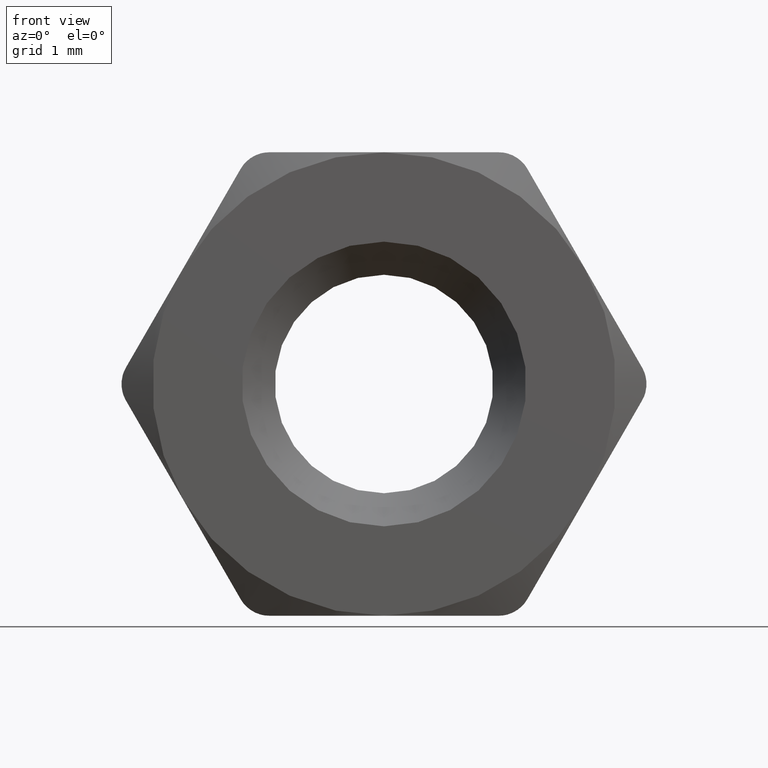
[diagram: clean part render]
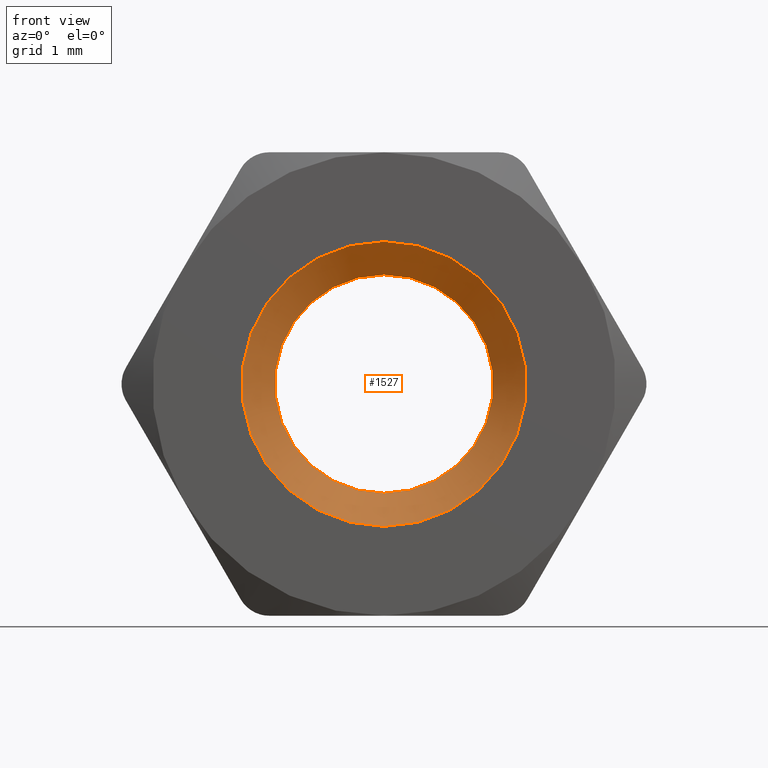
[diagram: same view with one face highlighted and labeled with its STEP entity id]
A machine part, front view. The second image highlights one B-rep face of the part: STEP entity #1527.
In plain terms, the highlighted conical surface has half-angle 45 deg.
Its self-contained STEP definition (entity closure, byte-faithful):
#10 = CARTESIAN_POINT ( 'NONE',  ( 0.0000000000000000000, -1.600000000000000100, 0.0000000000000000000 ) ) ;
#90 = CARTESIAN_POINT ( 'NONE',  ( 0.0000000000000000000, -1.099999999999998800, 1.649999999999998400 ) ) ;
#162 = AXIS2_PLACEMENT_3D ( 'NONE', #1841, #1499, #563 ) ;
#170 = FACE_BOUND ( 'NONE', #920, .T. ) ;
#216 = EDGE_CURVE ( 'NONE', #615, #615, #617, .T. ) ;
#328 = CARTESIAN_POINT ( 'NONE',  ( 0.0000000000000000000, -1.600000000000000100, 0.0000000000000000000 ) ) ;
#478 = DIRECTION ( 'NONE',  ( -0.0000000000000000000, -1.000000000000000000, -0.0000000000000000000 ) ) ;
#485 = ORIENTED_EDGE ( 'NONE', *, *, #216, .F. ) ;
#563 = DIRECTION ( 'NONE',  ( 0.0000000000000000000, 0.0000000000000000000, 1.000000000000000000 ) ) ;
#615 = VERTEX_POINT ( 'NONE', #1951 ) ;
#617 = CIRCLE ( 'NONE', #1534, 2.149999999999999000 ) ;
#788 = VERTEX_POINT ( 'NONE', #90 ) ;
#873 = AXIS2_PLACEMENT_3D ( 'NONE', #328, #478, #1090 ) ;
#920 = EDGE_LOOP ( 'NONE', ( #2037 ) ) ;
#969 = DIRECTION ( 'NONE',  ( 0.0000000000000000000, 0.0000000000000000000, 1.000000000000000000 ) ) ;
#993 = CONICAL_SURFACE ( 'NONE', #873, 2.149999999999999000, 0.7853981633974479500 ) ;
#1034 = EDGE_CURVE ( 'NONE', #788, #788, #1094, .T. ) ;
#1090 = DIRECTION ( 'NONE',  ( 0.0000000000000000000, 0.0000000000000000000, -1.000000000000000000 ) ) ;
#1094 = CIRCLE ( 'NONE', #162, 1.649999999999998400 ) ;
#1245 = EDGE_LOOP ( 'NONE', ( #485 ) ) ;
#1499 = DIRECTION ( 'NONE',  ( -0.0000000000000000000, -1.000000000000000000, -0.0000000000000000000 ) ) ;
#1527 = ADVANCED_FACE ( 'NONE', ( #170, #1764 ), #993, .F. ) ;
#1534 = AXIS2_PLACEMENT_3D ( 'NONE', #10, #1917, #969 ) ;
#1764 = FACE_OUTER_BOUND ( 'NONE', #1245, .T. ) ;
#1841 = CARTESIAN_POINT ( 'NONE',  ( 0.0000000000000000000, -1.099999999999998800, 0.0000000000000000000 ) ) ;
#1917 = DIRECTION ( 'NONE',  ( -0.0000000000000000000, 1.000000000000000000, 0.0000000000000000000 ) ) ;
#1951 = CARTESIAN_POINT ( 'NONE',  ( 0.0000000000000000000, -1.600000000000000100, 2.149999999999999000 ) ) ;
#2037 = ORIENTED_EDGE ( 'NONE', *, *, #1034, .F. ) ;